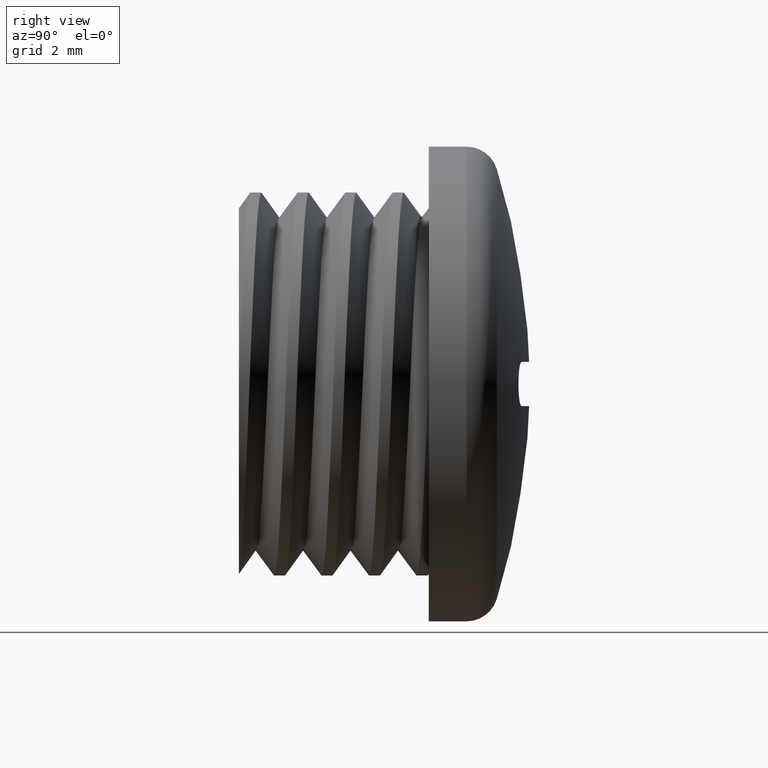
[diagram: clean part render]
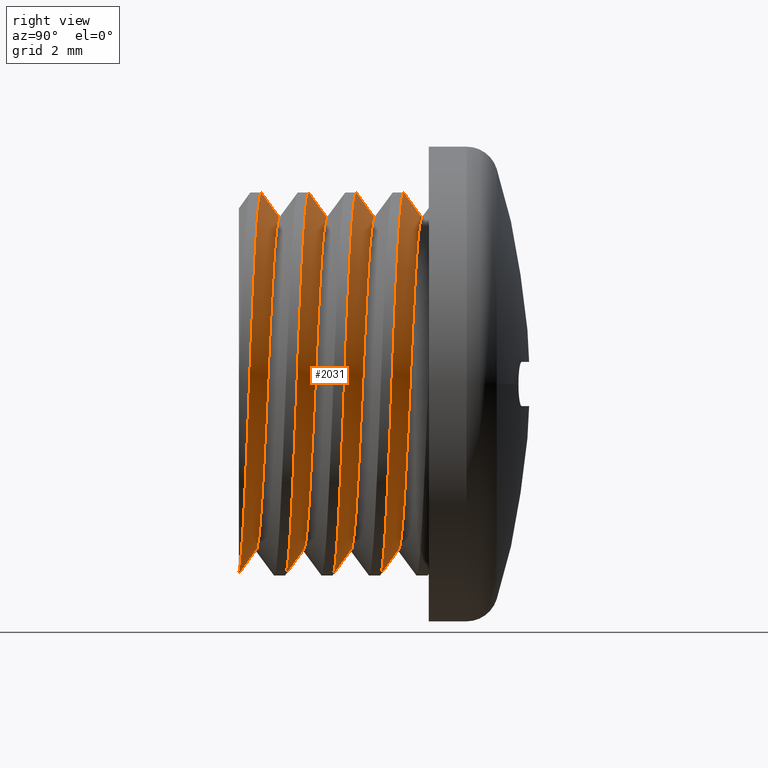
[diagram: same view with one face highlighted and labeled with its STEP entity id]
A machine part, right view. The second image highlights one B-rep face of the part: STEP entity #2031.
In plain terms, the highlighted face is a freeform B-spline surface patch.
Its self-contained STEP definition (entity closure, byte-faithful):
#1 = CARTESIAN_POINT ( 'NONE',  ( 2.505992052357227400, 2.706376109346959600, 6.050000000000001600 ) ) ;
#2 = CARTESIAN_POINT ( 'NONE',  ( -1.111366970226222900E-015, 5.800126109346960500, 6.049999999999999800 ) ) ;
#3 = CARTESIAN_POINT ( 'NONE',  ( 4.277996026178611200, 5.612626109346960500, 4.277996026178613000 ) ) ;
#4 = CARTESIAN_POINT ( 'NONE',  ( -6.049999999999999800, 4.675126109346960500, -7.409113134841486500E-016 ) ) ;
#5 = CARTESIAN_POINT ( 'NONE',  ( 4.277996026178612100, 5.237626109346959600, -4.277996026178612100 ) ) ;
#6 = CARTESIAN_POINT ( 'NONE',  ( -2.505992052357225200, 0.4563761093469599900, -6.050000000000001600 ) ) ;
#7 = CARTESIAN_POINT ( 'NONE',  ( 2.505992052357227400, 1.206376109346959800, 6.050000000000001600 ) ) ;
#8 = CARTESIAN_POINT ( 'NONE',  ( -6.049999999999999800, 1.675126109346960700, -7.409113134841486500E-016 ) ) ;
#9 = CARTESIAN_POINT ( 'NONE',  ( -2.505992052357228300, 2.893876109346960000, 6.050000000000001600 ) ) ;
#10 = CARTESIAN_POINT ( 'NONE',  ( -1.111366970226222900E-015, 1.300126109346959800, 6.049999999999999800 ) ) ;
#11 = CARTESIAN_POINT ( 'NONE',  ( 2.505992052357227400, 3.643876109346960000, -6.050000000000001600 ) ) ;
#12 = CARTESIAN_POINT ( 'NONE',  ( 4.277996026178612100, 3.737626109346960500, -4.277996026178612100 ) ) ;
#13 = CARTESIAN_POINT ( 'NONE',  ( 4.277996026178611200, 1.112626109346959600, 4.277996026178613000 ) ) ;
#14 = CARTESIAN_POINT ( 'NONE',  ( 3.704556567420743300E-016, 3.550126109346960000, -6.049999999999999800 ) ) ;
#15 = CARTESIAN_POINT ( 'NONE',  ( 6.050000000000001600, 1.018876109346960000, 2.505992052357228800 ) ) ;
#16 = CARTESIAN_POINT ( 'NONE',  ( -4.277996026178613000, 1.487626109346960000, 4.277996026178612100 ) ) ;
#17 = CARTESIAN_POINT ( 'NONE',  ( -2.505992052357225200, 1.956376109346960000, -6.050000000000001600 ) ) ;
#18 = CARTESIAN_POINT ( 'NONE',  ( -2.505992052357225200, 3.456376109346960000, -6.050000000000001600 ) ) ;
#19 = CARTESIAN_POINT ( 'NONE',  ( 6.049999999999999800, 3.925126109346960500, 1.481822626968297300E-015 ) ) ;
#20 = CARTESIAN_POINT ( 'NONE',  ( -4.277996026178612100, 0.3626261093469597700, -4.277996026178612100 ) ) ;
#21 = CARTESIAN_POINT ( 'NONE',  ( 2.505992052357227400, 0.6438761093469598200, -6.050000000000001600 ) ) ;
#22 = CARTESIAN_POINT ( 'NONE',  ( -1.111366970226222900E-015, 2.800126109346960900, 6.049999999999999800 ) ) ;
#23 = CARTESIAN_POINT ( 'NONE',  ( -6.050000000000001600, 3.081376109346960900, 2.505992052357223900 ) ) ;
#24 = CARTESIAN_POINT ( 'NONE',  ( 4.277996026178611200, 4.112626109346959600, 4.277996026178613000 ) ) ;
#25 = CARTESIAN_POINT ( 'NONE',  ( -6.049999999999999800, 0.1751261093469598200, -7.409113134841486500E-016 ) ) ;
#26 = CARTESIAN_POINT ( 'NONE',  ( -6.050000000000001600, 1.768876109346959600, -2.505992052357227400 ) ) ;
#27 = CARTESIAN_POINT ( 'NONE',  ( 4.277996026178612100, 2.237626109346959600, -4.277996026178612100 ) ) ;
#28 = CARTESIAN_POINT ( 'NONE',  ( 4.277996026178611200, 2.612626109346960000, 4.277996026178613000 ) ) ;
#29 = CARTESIAN_POINT ( 'NONE',  ( 2.505992052357227400, 4.206376109346959600, 6.050000000000001600 ) ) ;
#30 = CARTESIAN_POINT ( 'NONE',  ( -1.111366970226222900E-015, 4.300126109346959600, 6.049999999999999800 ) ) ;
#31 = CARTESIAN_POINT ( 'NONE',  ( 3.704556567420743300E-016, 5.050126109346959600, -6.049999999999999800 ) ) ;
#32 = CARTESIAN_POINT ( 'NONE',  ( 6.050000000000001600, 5.331376109346959600, -2.505992052357227000 ) ) ;
#33 = CARTESIAN_POINT ( 'NONE',  ( 6.049999999999999800, 5.425126109346959600, 1.481822626968297300E-015 ) ) ;
#34 = CARTESIAN_POINT ( 'NONE',  ( 2.505992052357227400, 5.143876109346959600, -6.050000000000001600 ) ) ;
#35 = CARTESIAN_POINT ( 'NONE',  ( 6.050000000000001600, 5.518876109346959600, 2.505992052357228800 ) ) ;
#36 = CARTESIAN_POINT ( 'NONE',  ( -2.505992052357228300, 1.393876109346959800, 6.050000000000001600 ) ) ;
#37 = CARTESIAN_POINT ( 'NONE',  ( 6.050000000000001600, 3.831376109346960500, -2.505992052357227000 ) ) ;
#38 = CARTESIAN_POINT ( 'NONE',  ( -4.277996026178613000, 4.487626109346961400, 4.277996026178612100 ) ) ;
#39 = CARTESIAN_POINT ( 'NONE',  ( -6.050000000000001600, 4.768876109346960500, -2.505992052357227400 ) ) ;
#40 = CARTESIAN_POINT ( 'NONE',  ( -2.505992052357228300, -0.1061238906530402000, 6.050000000000001600 ) ) ;
#41 = CARTESIAN_POINT ( 'NONE',  ( 6.050000000000001600, 2.331376109346960000, -2.505992052357227000 ) ) ;
#42 = CARTESIAN_POINT ( 'NONE',  ( 3.704556567420743300E-016, 2.050126109346960000, -6.049999999999999800 ) ) ;
#43 = CARTESIAN_POINT ( 'NONE',  ( -6.050000000000001600, 0.08137610934695985200, 2.505992052357223900 ) ) ;
#44 = CARTESIAN_POINT ( 'NONE',  ( 2.505992052357227400, 2.143876109346961400, -6.050000000000001600 ) ) ;
#45 = CARTESIAN_POINT ( 'NONE',  ( 6.050000000000001600, 2.518876109346960500, 2.505992052357228800 ) ) ;
#46 = CARTESIAN_POINT ( 'NONE',  ( 6.050000000000001600, 0.8313761093469601600, -2.505992052357227000 ) ) ;
#47 = CARTESIAN_POINT ( 'NONE',  ( -6.050000000000001600, 3.268876109346959600, -2.505992052357227400 ) ) ;
#48 = CARTESIAN_POINT ( 'NONE',  ( 3.704556567420743300E-016, 0.5501261093469599400, -6.049999999999999800 ) ) ;
#49 = CARTESIAN_POINT ( 'NONE',  ( -4.277996026178613000, 2.987626109346960000, 4.277996026178612100 ) ) ;
#50 = CARTESIAN_POINT ( 'NONE',  ( -2.505992052357228300, 4.393876109346959600, 6.050000000000001600 ) ) ;
#51 = CARTESIAN_POINT ( 'NONE',  ( -6.050000000000001600, 4.581376109346959600, 2.505992052357223900 ) ) ;
#52 = CARTESIAN_POINT ( 'NONE',  ( -4.277996026178612100, 4.862626109346960500, -4.277996026178612100 ) ) ;
#53 = CARTESIAN_POINT ( 'NONE',  ( 2.505992052357227400, 5.706376109346959600, 6.050000000000001600 ) ) ;
#54 = CARTESIAN_POINT ( 'NONE',  ( -4.277996026178613000, -0.01237389065304012700, 4.277996026178612100 ) ) ;
#55 = CARTESIAN_POINT ( 'NONE',  ( -6.050000000000001600, 1.581376109346960000, 2.505992052357223900 ) ) ;
#56 = CARTESIAN_POINT ( 'NONE',  ( 6.049999999999999800, 2.425126109346960000, 1.481822626968297300E-015 ) ) ;
#57 = CARTESIAN_POINT ( 'NONE',  ( 6.050000000000001600, 4.018876109346959600, 2.505992052357228800 ) ) ;
#58 = CARTESIAN_POINT ( 'NONE',  ( -2.505992052357225200, 4.956376109346959600, -6.050000000000001600 ) ) ;
#59 = CARTESIAN_POINT ( 'NONE',  ( 4.277996026178612100, 0.7376261093469601600, -4.277996026178612100 ) ) ;
#60 = CARTESIAN_POINT ( 'NONE',  ( 6.049999999999999800, 0.9251261093469598200, 1.481822626968297300E-015 ) ) ;
#61 = CARTESIAN_POINT ( 'NONE',  ( -6.049999999999999800, 3.175126109346959600, -7.409113134841486500E-016 ) ) ;
#62 = CARTESIAN_POINT ( 'NONE',  ( -4.277996026178612100, 3.362626109346960000, -4.277996026178612100 ) ) ;
#63 = CARTESIAN_POINT ( 'NONE',  ( -6.050000000000001600, 0.2688761093469597700, -2.505992052357227400 ) ) ;
#64 = CARTESIAN_POINT ( 'NONE',  ( -4.277996026178612100, 1.862626109346959800, -4.277996026178612100 ) ) ;
#68 = CARTESIAN_POINT ( 'NONE',  ( 4.277996026178612100, 6.737626109346960500, -4.277996026178612100 ) ) ;
#75 = CARTESIAN_POINT ( 'NONE',  ( -6.050000000000001600, 6.268876109346961400, -2.505992052357227400 ) ) ;
#82 = CARTESIAN_POINT ( 'NONE',  ( -6.049999999999999800, 6.175126109346959600, -7.409113134841486500E-016 ) ) ;
#90 = CARTESIAN_POINT ( 'NONE',  ( -4.277996026178612100, 6.362626109346959600, -4.277996026178612100 ) ) ;
#91 = CARTESIAN_POINT ( 'NONE',  ( 3.704556567420743300E-016, 6.550126109346962300, -6.049999999999999800 ) ) ;
#94 = CARTESIAN_POINT ( 'NONE',  ( -6.050000000000001600, 6.081376109346959600, 2.505992052357223900 ) ) ;
#98 = CARTESIAN_POINT ( 'NONE',  ( -2.505992052357225200, 6.456376109346959600, -6.050000000000001600 ) ) ;
#99 = CARTESIAN_POINT ( 'NONE',  ( -4.277996026178613000, 5.987626109346959600, 4.277996026178612100 ) ) ;
#100 = CARTESIAN_POINT ( 'NONE',  ( 6.049999999999999800, 6.925126109346959600, 1.481822626968297300E-015 ) ) ;
#102 = CARTESIAN_POINT ( 'NONE',  ( 2.505992052357227400, 6.643876109346959600, -6.050000000000001600 ) ) ;
#116 = CARTESIAN_POINT ( 'NONE',  ( 6.050000000000001600, 6.831376109346960500, -2.505992052357227000 ) ) ;
#117 = CARTESIAN_POINT ( 'NONE',  ( -2.505992052357228300, 5.893876109346960500, 6.050000000000001600 ) ) ;
#789 = CARTESIAN_POINT ( 'NONE',  ( 0.4767332268734920100, 6.590691688707115900, -6.027460733374892900 ) ) ;
#793 = CARTESIAN_POINT ( 'NONE',  ( 1.046562144374508300, 6.590691688707116700, -5.958792468106455700 ) ) ;
#801 = CARTESIAN_POINT ( 'NONE',  ( -5.418655082583039300, 6.590691688707116700, -1.258696964857538800 ) ) ;
#802 = CARTESIAN_POINT ( 'NONE',  ( -5.261892450653936000, 6.590691688707110500, 1.272915754200655900 ) ) ;
#804 = CARTESIAN_POINT ( 'NONE',  ( -3.897803387318181200, 0.5900000000000148500, -4.240062443806348100 ) ) ;
#805 = CARTESIAN_POINT ( 'NONE',  ( -1.753212765986236200, 6.590691688707115900, -5.637592657702938000 ) ) ;
#806 = CARTESIAN_POINT ( 'NONE',  ( -3.881901349614701200, 6.590691688707117600, -4.254933638930080700 ) ) ;
#807 = CARTESIAN_POINT ( 'NONE',  ( -0.9315806894199528700, 6.590691688707115000, -5.878191781287800800 ) ) ;
#808 = CARTESIAN_POINT ( 'NONE',  ( -3.244317848646373700, 6.590691688707117600, -4.816245778005123800 ) ) ;
#809 = CARTESIAN_POINT ( 'NONE',  ( -5.294758413213608100, 6.590691688707116700, -1.813559088695089400 ) ) ;
#810 = CARTESIAN_POINT ( 'NONE',  ( -2.524323389836862200, 6.590691688707117600, -5.283636220357985600 ) ) ;
#811 = CARTESIAN_POINT ( 'NONE',  ( -4.147533417366705800, 6.590691688707116700, 3.242958517323983900 ) ) ;
#813 = CARTESIAN_POINT ( 'NONE',  ( -4.138008830249748200, 0.5900000000000016300, 3.255103118801742300 ) ) ;
#814 = CARTESIAN_POINT ( 'NONE',  ( -4.831701580854220500, 6.590691688707118500, 2.334076269947546600 ) ) ;
#817 = CARTESIAN_POINT ( 'NONE',  ( -0.08908530659348369600, 6.590691688707113200, -6.016964204237069700 ) ) ;
#818 = CARTESIAN_POINT ( 'NONE',  ( -4.880378072715417100, 6.590691688707112300, -2.874946076253846800 ) ) ;
#819 = CARTESIAN_POINT ( 'NONE',  ( -5.257374285143514600, 0.5899999999999948600, 1.290710653147852300 ) ) ;
#821 = CARTESIAN_POINT ( 'NONE',  ( -4.528526544215804300, 6.590691688707117600, 2.812715320824375800 ) ) ;
#823 = CARTESIAN_POINT ( 'NONE',  ( -5.498900937243330000, 0.5900000000000023000, -0.3932831303897143000 ) ) ;
#824 = CARTESIAN_POINT ( 'NONE',  ( -5.003208019672817000, 6.590691688707117600, -2.619966405177630400 ) ) ;
#825 = CARTESIAN_POINT ( 'NONE',  ( -5.462378101001049500, 0.5900000000000024100, -0.9592472982626215600 ) ) ;
#827 = CARTESIAN_POINT ( 'NONE',  ( -3.466085316116987800, 6.590691688707116700, -4.639124568342858800 ) ) ;
#830 = CARTESIAN_POINT ( 'NONE',  ( -5.459198598145863300, 6.590691688707122100, -0.9783859338851537100 ) ) ;
#831 = CARTESIAN_POINT ( 'NONE',  ( -4.596744028863471800, 6.590691688707113200, -3.365260366505920000 ) ) ;
#832 = CARTESIAN_POINT ( 'NONE',  ( -4.434737786691715500, 6.590691688707117600, -3.602057687231706900 ) ) ;
#833 = CARTESIAN_POINT ( 'NONE',  ( -4.076169192242400800, 6.590691688707116700, -4.048100833600527100 ) ) ;
#834 = CARTESIAN_POINT ( 'NONE',  ( -5.497680573991218000, 6.590691688707121200, -0.4120314599989919300 ) ) ;
#835 = CARTESIAN_POINT ( 'NONE',  ( -5.495563773654545500, 6.590691688707106100, -0.1233751083295873800 ) ) ;
#836 = CARTESIAN_POINT ( 'NONE',  ( -2.015573616485173400, 6.590691688707115900, -5.532155859686685800 ) ) ;
#837 = CARTESIAN_POINT ( 'NONE',  ( -5.210380785036420500, 6.590691688707116700, -2.090096633453142800 ) ) ;
#838 = CARTESIAN_POINT ( 'NONE',  ( -4.824093481931830900, 0.5900000000000001900, 2.349304993163085600 ) ) ;
#839 = CARTESIAN_POINT ( 'NONE',  ( -5.165261145401560200, 0.5900000000000003000, 1.561497146290873300 ) ) ;
#840 = CARTESIAN_POINT ( 'NONE',  ( -5.396809796046601300, 0.5899999999999950800, 0.7420480307684493800 ) ) ;
#841 = CARTESIAN_POINT ( 'NONE',  ( -5.495911240440607400, 0.5899999999999993000, -0.1057434573459113000 ) ) ;
#842 = CARTESIAN_POINT ( 'NONE',  ( -5.170691631850489000, 6.590691688707115900, 1.544117606924583700 ) ) ;
#843 = CARTESIAN_POINT ( 'NONE',  ( -1.212386830438458400, 6.590691688707117600, -5.810508361329772800 ) ) ;
#844 = CARTESIAN_POINT ( 'NONE',  ( -5.300439950719841400, 0.5900000000000003000, -1.796620061944596400 ) ) ;
#846 = CARTESIAN_POINT ( 'NONE',  ( -5.422816559957263700, 0.5900000000000001900, -1.239928796507371100 ) ) ;
#847 = CARTESIAN_POINT ( 'NONE',  ( -5.217127081620002800, 0.5899999999999995200, -2.072609452356351000 ) ) ;
#849 = CARTESIAN_POINT ( 'NONE',  ( -5.012444595960044300, 0.5899999999999995200, -2.601565993294770800 ) ) ;
#850 = CARTESIAN_POINT ( 'NONE',  ( -4.890659777242102100, 0.5899999999999998600, -2.856959270208727200 ) ) ;
#851 = CARTESIAN_POINT ( 'NONE',  ( -2.772148633460569800, 6.590691688707117600, -5.139550678664928500 ) ) ;
#852 = CARTESIAN_POINT ( 'NONE',  ( -4.519807008836641800, 0.5900000000000016300, 2.826445878513559300 ) ) ;
#853 = CARTESIAN_POINT ( 'NONE',  ( -5.444733412008575100, 0.5899999999999991900, 0.4628059297968018500 ) ) ;
#854 = CARTESIAN_POINT ( 'NONE',  ( -4.608072159565493200, 0.5899999999999997500, -3.349514707442315500 ) ) ;
#855 = CARTESIAN_POINT ( 'NONE',  ( -5.399431474689390800, 6.590691688707109600, 0.7238366190391822800 ) ) ;
#856 = CARTESIAN_POINT ( 'NONE',  ( -4.445712708352043100, 0.5899999999999990800, -3.588293318611675400 ) ) ;
#857 = CARTESIAN_POINT ( 'NONE',  ( -4.090817180397282400, 0.5899999999999989700, -4.032896164381630100 ) ) ;
#859 = CARTESIAN_POINT ( 'NONE',  ( -5.446351150528043300, 6.590691688707105200, 0.4446181503025695700 ) ) ;
#863 = CARTESIAN_POINT ( 'NONE',  ( -1.774006093517159300, 0.5899999999999997500, -5.630914751144775500 ) ) ;
#864 = CARTESIAN_POINT ( 'NONE',  ( -2.544499409511809000, 0.5900000000000004100, -5.273559891919910000 ) ) ;
#865 = CARTESIAN_POINT ( 'NONE',  ( -0.3940142496733479700, 0.5899999999999658900, -5.968746079691809000 ) ) ;
#866 = CARTESIAN_POINT ( 'NONE',  ( 0.4569536285924925600, 0.5900000000000011900, -6.008629707231945900 ) ) ;
#869 = CARTESIAN_POINT ( 'NONE',  ( -2.037011068725241600, 0.5900000000000004100, -5.523905644850780800 ) ) ;
#870 = CARTESIAN_POINT ( 'NONE',  ( -2.788981617492968900, 0.5899999999999998600, -5.130220974818203500 ) ) ;
#871 = CARTESIAN_POINT ( 'NONE',  ( -0.1122020578807460500, 0.5900000000000013000, -5.995358746917874600 ) ) ;
#879 = CARTESIAN_POINT ( 'NONE',  ( -3.258935390471613400, 0.5899999999999998600, -4.806256429916283300 ) ) ;
#880 = CARTESIAN_POINT ( 'NONE',  ( -0.9519802428314603200, 0.5899999999999657700, -5.874648377076338700 ) ) ;
#891 = CARTESIAN_POINT ( 'NONE',  ( 0.5272554247480139000, 6.569850910957386600, -6.049999999999819500 ) ) ;
#893 = CARTESIAN_POINT ( 'NONE',  ( -3.482852940862207100, 0.5900000000000148500, -4.626272760495684400 ) ) ;
#896 = CARTESIAN_POINT ( 'NONE',  ( -4.147533417366705800, 6.590691688707116700, 3.242958517323983900 ) ) ;
#897 = CARTESIAN_POINT ( 'NONE',  ( 1.029316842820993300, 0.5899999999999998600, -5.961795605107996100 ) ) ;
#902 = CARTESIAN_POINT ( 'NONE',  ( -1.228765912102359300, 0.5899999999999997500, -5.807215561931736900 ) ) ;
#903 = CARTESIAN_POINT ( 'NONE',  ( 0.7445611787788908300, 0.5899999999999995200, -5.995285089515286700 ) ) ;
#905 = CARTESIAN_POINT ( 'NONE',  ( 8.146817116469705000E-013, 6.550126109346993400, -6.050000000000000700 ) ) ;
#906 = CARTESIAN_POINT ( 'NONE',  ( 1.046562144374508300, 6.590691688707116700, -5.958792468106454800 ) ) ;
#911 = CARTESIAN_POINT ( 'NONE',  ( -2.180778877489655300, 1.031250000000000000, -5.264865942572300600 ) ) ;
#912 = CARTESIAN_POINT ( 'NONE',  ( 3.223800612255540000E-016, 4.125000000000000000, -5.264865942572300600 ) ) ;
#913 = CARTESIAN_POINT ( 'NONE',  ( -2.180778877489658800, 6.468750000000001800, 5.264865942572300600 ) ) ;
#914 = CARTESIAN_POINT ( 'NONE',  ( -3.722822410030977500, 0.9375000000000000000, -3.722822410030977900 ) ) ;
#915 = CARTESIAN_POINT ( 'NONE',  ( -5.264865942572300600, 5.343750000000000000, -2.180778877489656200 ) ) ;
#916 = CARTESIAN_POINT ( 'NONE',  ( 5.264865942572300600, 3.000000000000000000, 1.289520244902216000E-015 ) ) ;
#917 = CARTESIAN_POINT ( 'NONE',  ( -3.722822410030977500, 3.937500000000000000, -3.722822410030977900 ) ) ;
#918 = CARTESIAN_POINT ( 'NONE',  ( -5.264865942572300600, 3.843750000000000000, -2.180778877489656200 ) ) ;
#919 = CARTESIAN_POINT ( 'NONE',  ( -2.180778877489658800, 3.468750000000000000, 5.264865942572300600 ) ) ;
#920 = CARTESIAN_POINT ( 'NONE',  ( -5.264865942572301400, 2.156250000000000400, 2.180778877489654400 ) ) ;
#921 = CARTESIAN_POINT ( 'NONE',  ( -2.180778877489658800, 1.968750000000000000, 5.264865942572300600 ) ) ;
#922 = CARTESIAN_POINT ( 'NONE',  ( 3.722822410030977900, 5.812500000000000000, -3.722822410030977500 ) ) ;
#923 = CARTESIAN_POINT ( 'NONE',  ( 5.264865942572300600, 4.593750000000000000, 2.180778877489658800 ) ) ;
#924 = CARTESIAN_POINT ( 'NONE',  ( 5.264865942572300600, 2.906250000000000000, -2.180778877489655700 ) ) ;
#925 = CARTESIAN_POINT ( 'NONE',  ( 2.180778877489657000, 1.781250000000000000, 5.264865942572300600 ) ) ;
#926 = CARTESIAN_POINT ( 'NONE',  ( -3.722822410030978400, 6.562500000000000000, 3.722822410030977500 ) ) ;
#927 = CARTESIAN_POINT ( 'NONE',  ( 5.264865942572300600, 1.593750000000000200, 2.180778877489658800 ) ) ;
#928 = CARTESIAN_POINT ( 'NONE',  ( 3.722822410030977500, 4.687500000000000000, 3.722822410030978400 ) ) ;
#929 = CARTESIAN_POINT ( 'NONE',  ( -9.671401836766619100E-016, 6.375000000000000900, 5.264865942572300600 ) ) ;
#930 = CARTESIAN_POINT ( 'NONE',  ( 5.264865942572300600, 5.906250000000000000, -2.180778877489655700 ) ) ;
#931 = CARTESIAN_POINT ( 'NONE',  ( -2.180778877489658800, 4.968749999999999100, 5.264865942572300600 ) ) ;
#932 = CARTESIAN_POINT ( 'NONE',  ( 3.722822410030977900, 4.312500000000000000, -3.722822410030977500 ) ) ;
#933 = CARTESIAN_POINT ( 'NONE',  ( -2.180778877489655300, 4.031250000000000000, -5.264865942572300600 ) ) ;
#934 = CARTESIAN_POINT ( 'NONE',  ( -5.264865942572300600, 2.250000000000001300, -6.447601224511080000E-016 ) ) ;
#935 = CARTESIAN_POINT ( 'NONE',  ( 4.277996026178611200, -0.3873738906530401800, 4.277996026178613000 ) ) ;
#936 = CARTESIAN_POINT ( 'NONE',  ( -5.264865942572300600, 3.750000000000000000, -6.447601224511080000E-016 ) ) ;
#937 = CARTESIAN_POINT ( 'NONE',  ( -5.264865942572301400, 3.656250000000001300, 2.180778877489654400 ) ) ;
#938 = CARTESIAN_POINT ( 'NONE',  ( 2.180778877489657000, 3.281250000000000000, 5.264865942572300600 ) ) ;
#939 = CARTESIAN_POINT ( 'NONE',  ( 2.180778877489656200, 5.718750000000000000, -5.264865942572300600 ) ) ;
#940 = CARTESIAN_POINT ( 'NONE',  ( -3.949806817434192500, 6.576299732462145700, 3.495838002627763300 ) ) ;
#941 = CARTESIAN_POINT ( 'NONE',  ( -2.180778877489655300, 5.531250000000000000, -5.264865942572300600 ) ) ;
#942 = CARTESIAN_POINT ( 'NONE',  ( -3.722822410030978400, 3.562500000000000000, 3.722822410030977500 ) ) ;
#943 = CARTESIAN_POINT ( 'NONE',  ( 2.180778877489657000, 6.281250000000000000, 5.264865942572300600 ) ) ;
#944 = CARTESIAN_POINT ( 'NONE',  ( 5.264865942572300600, 6.000000000000000000, 1.289520244902216000E-015 ) ) ;
#945 = CARTESIAN_POINT ( 'NONE',  ( 5.264865942572300600, 4.406250000000000000, -2.180778877489655700 ) ) ;
#946 = CARTESIAN_POINT ( 'NONE',  ( 2.180778877489656200, 2.718750000000001300, -5.264865942572300600 ) ) ;
#947 = CARTESIAN_POINT ( 'NONE',  ( 3.223800612255540000E-016, 2.625000000000000000, -5.264865942572300600 ) ) ;
#948 = CARTESIAN_POINT ( 'NONE',  ( 3.223800612255540000E-016, 5.625000000000000000, -5.264865942572300600 ) ) ;
#949 = CARTESIAN_POINT ( 'NONE',  ( 5.264865942572300600, 6.093750000000000000, 2.180778877489658800 ) ) ;
#951 = CARTESIAN_POINT ( 'NONE',  ( -5.264865942572301400, 5.156250000000000000, 2.180778877489654400 ) ) ;
#952 = CARTESIAN_POINT ( 'NONE',  ( -3.722822410030977500, 5.437500000000002700, -3.722822410030977900 ) ) ;
#953 = CARTESIAN_POINT ( 'NONE',  ( 2.180778877489656200, 4.218750000000000000, -5.264865942572300600 ) ) ;
#954 = CARTESIAN_POINT ( 'NONE',  ( -5.264865942572300600, 2.343750000000000400, -2.180778877489656200 ) ) ;
#955 = CARTESIAN_POINT ( 'NONE',  ( -9.671401836766619100E-016, 1.875000000000000000, 5.264865942572300600 ) ) ;
#956 = CARTESIAN_POINT ( 'NONE',  ( 5.264865942572300600, 1.500000000000000000, 1.289520244902216000E-015 ) ) ;
#957 = CARTESIAN_POINT ( 'NONE',  ( -3.722822410030978400, 2.062500000000000000, 3.722822410030977500 ) ) ;
#958 = CARTESIAN_POINT ( 'NONE',  ( 5.264865942572300600, 1.406250000000000000, -2.180778877489655700 ) ) ;
#959 = CARTESIAN_POINT ( 'NONE',  ( 5.264865942572300600, 4.500000000000002700, 1.289520244902216000E-015 ) ) ;
#960 = CARTESIAN_POINT ( 'NONE',  ( 3.722822410030977500, 3.187500000000000400, 3.722822410030978400 ) ) ;
#961 = CARTESIAN_POINT ( 'NONE',  ( 3.722822410030977900, 2.812500000000000000, -3.722822410030977500 ) ) ;
#962 = CARTESIAN_POINT ( 'NONE',  ( -9.671401836766619100E-016, 3.375000000000000000, 5.264865942572300600 ) ) ;
#963 = CARTESIAN_POINT ( 'NONE',  ( -2.180778877489655300, 2.531250000000000400, -5.264865942572300600 ) ) ;
#964 = CARTESIAN_POINT ( 'NONE',  ( 3.722822410030977900, 1.312500000000000000, -3.722822410030977500 ) ) ;
#965 = CARTESIAN_POINT ( 'NONE',  ( -3.722822410030977500, 2.437500000000000000, -3.722822410030977900 ) ) ;
#966 = CARTESIAN_POINT ( 'NONE',  ( 3.722822410030977500, 1.687500000000000000, 3.722822410030978400 ) ) ;
#967 = CARTESIAN_POINT ( 'NONE',  ( -5.264865942572300600, 5.250000000000000000, -6.447601224511080000E-016 ) ) ;
#968 = CARTESIAN_POINT ( 'NONE',  ( 3.722822410030977500, 6.187500000000000000, 3.722822410030978400 ) ) ;
#969 = CARTESIAN_POINT ( 'NONE',  ( -3.722822410030978400, 5.062500000000000000, 3.722822410030977500 ) ) ;
#970 = CARTESIAN_POINT ( 'NONE',  ( -9.671401836766619100E-016, 4.875000000000000000, 5.264865942572300600 ) ) ;
#971 = CARTESIAN_POINT ( 'NONE',  ( 2.180778877489656200, 1.218750000000000200, -5.264865942572300600 ) ) ;
#972 = CARTESIAN_POINT ( 'NONE',  ( 5.264865942572300600, 3.093750000000000000, 2.180778877489658800 ) ) ;
#973 = CARTESIAN_POINT ( 'NONE',  ( 3.223800612255540000E-016, 1.125000000000000700, -5.264865942572300600 ) ) ;
#974 = CARTESIAN_POINT ( 'NONE',  ( 2.180778877489657000, 4.781250000000000000, 5.264865942572300600 ) ) ;
#977 = CARTESIAN_POINT ( 'NONE',  ( -5.264865942572301400, 0.6716478242738305200, 1.822600211509212600 ) ) ;
#994 = CARTESIAN_POINT ( 'NONE',  ( -5.264865942572300600, 0.8437500000000000000, -2.180778877489656200 ) ) ;
#997 = CARTESIAN_POINT ( 'NONE',  ( -5.264865942572300600, 0.7500000000000000000, -6.447601224511080000E-016 ) ) ;
#1023 = CARTESIAN_POINT ( 'NONE',  ( -4.138008830249748200, 0.5900000000000016300, 3.255103118801742300 ) ) ;
#1047 = CARTESIAN_POINT ( 'NONE',  ( -1.111366970226222900E-015, 1.300126109346959800, 6.049999999999999800 ) ) ;
#1049 = CARTESIAN_POINT ( 'NONE',  ( -2.505992052357227000, 1.393876109346963200, 6.049999999999995400 ) ) ;
#1052 = CARTESIAN_POINT ( 'NONE',  ( -6.049999999999996300, 1.581376109346963400, 2.505992052357222100 ) ) ;
#1055 = CARTESIAN_POINT ( 'NONE',  ( -6.049999999999995400, 1.675126109346963800, -7.409113134841480600E-016 ) ) ;
#1056 = CARTESIAN_POINT ( 'NONE',  ( -6.049999999999996300, 1.768876109346962900, -2.505992052357225700 ) ) ;
#1057 = CARTESIAN_POINT ( 'NONE',  ( -4.277996026178609400, 1.862626109346962900, -4.277996026178609400 ) ) ;
#1066 = CARTESIAN_POINT ( 'NONE',  ( -4.277996026178610300, 1.487626109346963200, 4.277996026178609400 ) ) ;
#1068 = CARTESIAN_POINT ( 'NONE',  ( 8.023436623137807500E-013, 2.050126109346990200, -6.049999999999999800 ) ) ;
#1069 = CARTESIAN_POINT ( 'NONE',  ( -2.505992052356149600, 1.956376109347020200, -6.050000000001070100 ) ) ;
#1135 = CARTESIAN_POINT ( 'NONE',  ( -1.382972892286990700E-012, 4.300126109347012000, 6.050000000000000700 ) ) ;
#1141 = CARTESIAN_POINT ( 'NONE',  ( 6.049999999999994500, 3.831376109346964900, -2.505992052357223900 ) ) ;
#1144 = CARTESIAN_POINT ( 'NONE',  ( 4.277996026178606700, 3.737626109346965400, -4.277996026178606700 ) ) ;
#1150 = CARTESIAN_POINT ( 'NONE',  ( 6.049999999999993600, 3.925126109346965800, 1.481822626968295700E-015 ) ) ;
#1152 = CARTESIAN_POINT ( 'NONE',  ( 4.277996026178605900, 4.112626109346964000, 4.277996026178607600 ) ) ;
#1153 = CARTESIAN_POINT ( 'NONE',  ( -1.382972892286990700E-012, 4.300126109347012000, 6.050000000000000700 ) ) ;
#1161 = CARTESIAN_POINT ( 'NONE',  ( 3.704556567420743300E-016, 3.550126109346960000, -6.049999999999999800 ) ) ;
#1162 = CARTESIAN_POINT ( 'NONE',  ( 2.505992052357224300, 3.643876109346964900, -6.049999999999994500 ) ) ;
#1163 = CARTESIAN_POINT ( 'NONE',  ( 6.049999999999993600, 4.018876109346964000, 2.505992052357226100 ) ) ;
#1164 = CARTESIAN_POINT ( 'NONE',  ( 2.505992052355905400, 4.206376109347034200, 6.050000000001313400 ) ) ;
#1177 = CARTESIAN_POINT ( 'NONE',  ( 2.505992052357227400, -0.2936238906530401200, 6.050000000000001600 ) ) ;
#1182 = CARTESIAN_POINT ( 'NONE',  ( 2.505992052357227000, 5.706376109346960500, 6.050000000000001600 ) ) ;
#1183 = CARTESIAN_POINT ( 'NONE',  ( -6.049999999999995400, 4.768876109346964000, -2.505992052357224300 ) ) ;
#1184 = CARTESIAN_POINT ( 'NONE',  ( -6.049999999999995400, 4.581376109346964000, 2.505992052357221700 ) ) ;
#1185 = CARTESIAN_POINT ( 'NONE',  ( -8.632929976661989300E-013, 5.050126109346927600, -6.049999999999999800 ) ) ;
#1187 = CARTESIAN_POINT ( 'NONE',  ( 4.277996026178607600, 0.7376261093469644900, -4.277996026178607600 ) ) ;
#1188 = CARTESIAN_POINT ( 'NONE',  ( -1.111366970226222900E-015, 1.300126109346959800, 6.049999999999999800 ) ) ;
#1189 = CARTESIAN_POINT ( 'NONE',  ( -8.632929976661989300E-013, 5.050126109346927600, -6.049999999999999800 ) ) ;
#1190 = CARTESIAN_POINT ( 'NONE',  ( -6.049999999999993600, 4.675126109346964000, -7.409113134841479600E-016 ) ) ;
#1191 = CARTESIAN_POINT ( 'NONE',  ( -4.277996026178609400, 4.487626109346965800, 4.277996026178608500 ) ) ;
#1195 = CARTESIAN_POINT ( 'NONE',  ( 4.277996026178606700, 1.112626109346964000, 4.277996026178608500 ) ) ;
#1196 = CARTESIAN_POINT ( 'NONE',  ( 2.505992052356123000, 5.143876109346901000, -6.050000000001104700 ) ) ;
#1197 = CARTESIAN_POINT ( 'NONE',  ( 6.050000000000001600, 5.518876109346960500, 2.505992052357228800 ) ) ;
#1199 = CARTESIAN_POINT ( 'NONE',  ( -2.505992052358325700, 4.956376109346904500, -6.049999999998891400 ) ) ;
#1202 = CARTESIAN_POINT ( 'NONE',  ( 6.050000000000001600, 5.331376109346959600, -2.505992052357226100 ) ) ;
#1207 = CARTESIAN_POINT ( 'NONE',  ( 1.029316842820993300, 0.5899999999999998600, -5.961795605107996100 ) ) ;
#1208 = CARTESIAN_POINT ( 'NONE',  ( 6.049999999999994500, 0.8313761093469644900, -2.505992052357224300 ) ) ;
#1209 = CARTESIAN_POINT ( 'NONE',  ( 6.049999999999993600, 0.9251261093469641500, 1.481822626968295900E-015 ) ) ;
#1210 = CARTESIAN_POINT ( 'NONE',  ( 4.277996026178611200, 5.612626109346961400, 4.277996026178613000 ) ) ;
#1211 = CARTESIAN_POINT ( 'NONE',  ( 2.505992052357224300, 1.206376109346964000, 6.049999999999994500 ) ) ;
#1213 = CARTESIAN_POINT ( 'NONE',  ( -1.111366970226222900E-015, 5.800126109346960500, 6.049999999999999800 ) ) ;
#1216 = CARTESIAN_POINT ( 'NONE',  ( -2.505992052358545100, 4.393876109347035100, 6.049999999998677300 ) ) ;
#1217 = CARTESIAN_POINT ( 'NONE',  ( 2.920757799350861100, 0.6658197896970699000, -5.635234253006357700 ) ) ;
#1219 = CARTESIAN_POINT ( 'NONE',  ( -4.277996026178608500, 4.862626109346964900, -4.277996026178608500 ) ) ;
#1222 = CARTESIAN_POINT ( 'NONE',  ( 6.049999999999993600, 1.018876109346964300, 2.505992052357227000 ) ) ;
#1224 = CARTESIAN_POINT ( 'NONE',  ( 4.277996026178612100, 5.237626109346959600, -4.277996026178612100 ) ) ;
#1226 = CARTESIAN_POINT ( 'NONE',  ( 6.049999999999998900, 5.425126109346960500, 1.481822626968297100E-015 ) ) ;
#1232 = CARTESIAN_POINT ( 'NONE',  ( 6.049999999999995400, 2.331376109346964500, -2.505992052357224300 ) ) ;
#1244 = CARTESIAN_POINT ( 'NONE',  ( 4.277996026178607600, 2.237626109346964000, -4.277996026178607600 ) ) ;
#1247 = CARTESIAN_POINT ( 'NONE',  ( 6.049999999999994500, 2.518876109346964500, 2.505992052357227000 ) ) ;
#1249 = CARTESIAN_POINT ( 'NONE',  ( 8.023436623137807500E-013, 2.050126109346990200, -6.049999999999999800 ) ) ;
#1268 = CARTESIAN_POINT ( 'NONE',  ( 2.505992052358584100, 2.706376109346892500, 6.049999999998636500 ) ) ;
#1271 = CARTESIAN_POINT ( 'NONE',  ( 6.049999999999993600, 2.425126109346964500, 1.481822626968295900E-015 ) ) ;
#1281 = CARTESIAN_POINT ( 'NONE',  ( 4.277996026178606700, 2.612626109346964500, 4.277996026178608500 ) ) ;
#1282 = CARTESIAN_POINT ( 'NONE',  ( 1.479454553011943900E-012, 2.800126109346905900, 6.050000000000000700 ) ) ;
#1284 = CARTESIAN_POINT ( 'NONE',  ( 2.505992052358298100, 2.143876109347021800, -6.049999999998923400 ) ) ;
#1285 = CARTESIAN_POINT ( 'NONE',  ( -6.049999999999995400, 6.081376109346964000, 2.505992052357221700 ) ) ;
#1288 = CARTESIAN_POINT ( 'NONE',  ( 1.479454553011943900E-012, 2.800126109346905900, 6.050000000000000700 ) ) ;
#1290 = CARTESIAN_POINT ( 'NONE',  ( -2.505992052355865400, 2.893876109346893400, 6.050000000001351600 ) ) ;
#1301 = CARTESIAN_POINT ( 'NONE',  ( -2.505992052357226100, 5.893876109346964000, 6.049999999999994500 ) ) ;
#1302 = CARTESIAN_POINT ( 'NONE',  ( -4.277996026178608500, 5.987626109346964000, 4.277996026178607600 ) ) ;
#1305 = CARTESIAN_POINT ( 'NONE',  ( -4.277996026178607600, 2.987626109346965800, 4.277996026178606700 ) ) ;
#1307 = CARTESIAN_POINT ( 'NONE',  ( -6.049999999999995400, 6.268876109346964900, -2.505992052357224300 ) ) ;
#1308 = CARTESIAN_POINT ( 'NONE',  ( -4.277996026178607600, 6.362626109346963200, -4.277996026178607600 ) ) ;
#1311 = CARTESIAN_POINT ( 'NONE',  ( -1.111366970226222900E-015, 5.800126109346960500, 6.049999999999999800 ) ) ;
#1326 = CARTESIAN_POINT ( 'NONE',  ( -6.049999999999993600, 6.175126109346964000, -7.409113134841479600E-016 ) ) ;
#1329 = CARTESIAN_POINT ( 'NONE',  ( 8.146817116469705000E-013, 6.550126109346993400, -6.050000000000000700 ) ) ;
#1332 = CARTESIAN_POINT ( 'NONE',  ( -2.505992052356139900, 6.456376109347021800, -6.050000000001079000 ) ) ;
#1349 = CARTESIAN_POINT ( 'NONE',  ( -6.049999999999993600, 3.081376109346966700, 2.505992052357220800 ) ) ;
#1360 = CARTESIAN_POINT ( 'NONE',  ( -4.277996026178606700, 3.362626109346965800, -4.277996026178606700 ) ) ;
#1361 = CARTESIAN_POINT ( 'NONE',  ( -2.505992052357221700, 3.456376109346965800, -6.049999999999993600 ) ) ;
#1371 = CARTESIAN_POINT ( 'NONE',  ( -6.049999999999993600, 3.268876109346965400, -2.505992052357223900 ) ) ;
#1380 = CARTESIAN_POINT ( 'NONE',  ( -6.049999999999991800, 3.175126109346965400, -7.409113134841476700E-016 ) ) ;
#1384 = CARTESIAN_POINT ( 'NONE',  ( 3.704556567420743300E-016, 3.550126109346960000, -6.049999999999999800 ) ) ;
#1390 = CARTESIAN_POINT ( 'NONE',  ( -1.111366970226222900E-015, -0.1998738906530401800, 6.049999999999999800 ) ) ;
#1444 = CARTESIAN_POINT ( 'NONE',  ( 5.264865942572299700, -1.406250000000000000, 2.180778877489658800 ) ) ;
#1446 = CARTESIAN_POINT ( 'NONE',  ( -3.722822410030977500, -0.5625000000000003300, -3.722822410030977900 ) ) ;
#1451 = CARTESIAN_POINT ( 'NONE',  ( 3.223800612255540000E-016, -0.3750000000000000000, -5.264865942572300600 ) ) ;
#1454 = CARTESIAN_POINT ( 'NONE',  ( 3.722822410030977500, 0.1875000000000000000, 3.722822410030978400 ) ) ;
#1455 = CARTESIAN_POINT ( 'NONE',  ( 2.180778877489657000, 0.2812500000000000600, 5.264865942572299700 ) ) ;
#1456 = FACE_OUTER_BOUND ( 'NONE', #1660, .T. ) ;
#1458 = CARTESIAN_POINT ( 'NONE',  ( 3.722822410030977500, -1.312500000000000000, 3.722822410030978400 ) ) ;
#1459 = CARTESIAN_POINT ( 'NONE',  ( -9.671401836766619100E-016, 0.3750000000000000000, 5.264865942572300600 ) ) ;
#1460 = CARTESIAN_POINT ( 'NONE',  ( -2.180778877489658800, 0.4687499999999999400, 5.264865942572299700 ) ) ;
#1461 = CARTESIAN_POINT ( 'NONE',  ( -2.180778877489655300, -0.4687499999999999400, -5.264865942572299700 ) ) ;
#1463 = CARTESIAN_POINT ( 'NONE',  ( -3.722822410030978400, 0.5625000000000003300, 3.722822410030977500 ) ) ;
#1464 = CARTESIAN_POINT ( 'NONE',  ( -5.264865942572300600, 0.6562500000000004400, 2.180778877489654400 ) ) ;
#1467 = CARTESIAN_POINT ( 'NONE',  ( -2.180778877489658800, -1.031250000000000000, 5.264865942572299700 ) ) ;
#1468 = CARTESIAN_POINT ( 'NONE',  ( -5.264865942572299700, -0.6562500000000004400, -2.180778877489656200 ) ) ;
#1476 = CARTESIAN_POINT ( 'NONE',  ( -3.722822410030978400, -0.9375000000000000000, 3.722822410030977500 ) ) ;
#1478 = CARTESIAN_POINT ( 'NONE',  ( 2.180778877489657000, -1.218750000000000200, 5.264865942572299700 ) ) ;
#1479 = CARTESIAN_POINT ( 'NONE',  ( -9.671401836766619100E-016, -1.125000000000000700, 5.264865942572300600 ) ) ;
#1481 = CARTESIAN_POINT ( 'NONE',  ( 5.264865942572300600, -1.500000000000000000, 1.289520244902216000E-015 ) ) ;
#1482 = CARTESIAN_POINT ( 'NONE',  ( -5.264865942572300600, -0.7500000000000000000, -6.447601224511080000E-016 ) ) ;
#1485 = CARTESIAN_POINT ( 'NONE',  ( 2.180778877489656200, -0.2812500000000000600, -5.264865942572299700 ) ) ;
#1486 = CARTESIAN_POINT ( 'NONE',  ( 3.722822410030977900, -0.1875000000000000000, -3.722822410030977500 ) ) ;
#1487 = CARTESIAN_POINT ( 'NONE',  ( 5.264865942572299700, -0.09375000000000001400, -2.180778877489655700 ) ) ;
#1493 = CARTESIAN_POINT ( 'NONE',  ( -5.264865942572300600, -0.8437500000000000000, 2.180778877489654400 ) ) ;
#1496 = CARTESIAN_POINT ( 'NONE',  ( 5.264865942572300600, 0.0000000000000000000, 1.289520244902216000E-015 ) ) ;
#1497 = CARTESIAN_POINT ( 'NONE',  ( 5.264865942572299700, 0.09375000000000001400, 2.180778877489658800 ) ) ;
#1499 = CARTESIAN_POINT ( 'NONE',  ( -3.722822410030978400, 3.562500000000000000, 3.722822410030977500 ) ) ;
#1500 = CARTESIAN_POINT ( 'NONE',  ( 5.264865942572299700, 4.406250000000000000, -2.180778877489655700 ) ) ;
#1501 = CARTESIAN_POINT ( 'NONE',  ( 3.223800612255540000E-016, 1.125000000000000700, -5.264865942572300600 ) ) ;
#1502 = CARTESIAN_POINT ( 'NONE',  ( -9.671401836766619100E-016, 3.375000000000000000, 5.264865942572300600 ) ) ;
#1503 = CARTESIAN_POINT ( 'NONE',  ( -5.264865942572300600, 0.7500000000000000000, -6.447601224511080000E-016 ) ) ;
#1504 = CARTESIAN_POINT ( 'NONE',  ( -5.264865942572300600, 2.250000000000001300, -6.447601224511080000E-016 ) ) ;
#1505 = CARTESIAN_POINT ( 'NONE',  ( 3.223800612255540000E-016, 4.125000000000000000, -5.264865942572300600 ) ) ;
#1506 = CARTESIAN_POINT ( 'NONE',  ( 2.180778877489656200, 4.218750000000000000, -5.264865942572299700 ) ) ;
#1507 = CARTESIAN_POINT ( 'NONE',  ( 5.264865942572300600, 4.500000000000002700, 1.289520244902216000E-015 ) ) ;
#1508 = CARTESIAN_POINT ( 'NONE',  ( -2.180778877489655300, 5.531250000000000000, -5.264865942572299700 ) ) ;
#1509 = CARTESIAN_POINT ( 'NONE',  ( -5.264865942572300600, 3.656250000000001300, 2.180778877489654400 ) ) ;
#1510 = CARTESIAN_POINT ( 'NONE',  ( 2.180778877489657000, 1.781250000000000200, 5.264865942572299700 ) ) ;
#1511 = CARTESIAN_POINT ( 'NONE',  ( 2.180778877489657000, 4.781250000000000000, 5.264865942572299700 ) ) ;
#1512 = CARTESIAN_POINT ( 'NONE',  ( -2.180778877489658800, 3.468750000000000000, 5.264865942572299700 ) ) ;
#1513 = CARTESIAN_POINT ( 'NONE',  ( -5.264865942572299700, 0.8437500000000000000, -2.180778877489656200 ) ) ;
#1514 = CARTESIAN_POINT ( 'NONE',  ( -2.180778877489655300, 1.031250000000000000, -5.264865942572299700 ) ) ;
#1515 = CARTESIAN_POINT ( 'NONE',  ( 5.264865942572300600, 3.000000000000000000, 1.289520244902216000E-015 ) ) ;
#1516 = CARTESIAN_POINT ( 'NONE',  ( 2.180778877489656200, 5.718750000000000000, -5.264865942572299700 ) ) ;
#1517 = CARTESIAN_POINT ( 'NONE',  ( 2.180778877489656200, 1.218750000000000200, -5.264865942572299700 ) ) ;
#1518 = CARTESIAN_POINT ( 'NONE',  ( 3.722822410030977500, 1.687500000000000000, 3.722822410030978400 ) ) ;
#1519 = CARTESIAN_POINT ( 'NONE',  ( 3.223800612255540000E-016, 2.625000000000000000, -5.264865942572300600 ) ) ;
#1520 = CARTESIAN_POINT ( 'NONE',  ( -3.722822410030977500, 3.937500000000000000, -3.722822410030977900 ) ) ;
#1521 = CARTESIAN_POINT ( 'NONE',  ( 5.264865942572299700, 3.093750000000000400, 2.180778877489658800 ) ) ;
#1522 = CARTESIAN_POINT ( 'NONE',  ( 3.722822410030977500, 4.687500000000000000, 3.722822410030978400 ) ) ;
#1523 = CARTESIAN_POINT ( 'NONE',  ( -3.722822410030977500, 5.437500000000002700, -3.722822410030977900 ) ) ;
#1524 = CARTESIAN_POINT ( 'NONE',  ( 5.264865942572299700, 5.906249999999999100, -2.180778877489655700 ) ) ;
#1525 = CARTESIAN_POINT ( 'NONE',  ( -2.180778877489658800, 4.968749999999999100, 5.264865942572299700 ) ) ;
#1526 = CARTESIAN_POINT ( 'NONE',  ( 5.264865942572299700, 6.093750000000000000, 2.180778877489658800 ) ) ;
#1527 = CARTESIAN_POINT ( 'NONE',  ( -9.671401836766619100E-016, 1.875000000000000000, 5.264865942572300600 ) ) ;
#1528 = CARTESIAN_POINT ( 'NONE',  ( -3.722822410030977500, 0.9375000000000000000, -3.722822410030977900 ) ) ;
#1529 = CARTESIAN_POINT ( 'NONE',  ( -3.722822410030978400, 2.062500000000000000, 3.722822410030977500 ) ) ;
#1530 = CARTESIAN_POINT ( 'NONE',  ( 3.722822410030977500, 3.187500000000000400, 3.722822410030978400 ) ) ;
#1531 = CARTESIAN_POINT ( 'NONE',  ( 3.722822410030977900, 1.312500000000000000, -3.722822410030977500 ) ) ;
#1532 = CARTESIAN_POINT ( 'NONE',  ( 5.264865942572299700, 1.593750000000000000, 2.180778877489658800 ) ) ;
#1533 = CARTESIAN_POINT ( 'NONE',  ( 2.180778877489657000, 3.281250000000000000, 5.264865942572299700 ) ) ;
#1534 = CARTESIAN_POINT ( 'NONE',  ( -5.264865942572299700, 3.843750000000000000, -2.180778877489656200 ) ) ;
#1535 = CARTESIAN_POINT ( 'NONE',  ( 3.722822410030977900, 4.312500000000000000, -3.722822410030977500 ) ) ;
#1536 = CARTESIAN_POINT ( 'NONE',  ( -2.180778877489658800, 1.968750000000000000, 5.264865942572299700 ) ) ;
#1537 = CARTESIAN_POINT ( 'NONE',  ( 5.264865942572300600, 1.500000000000000000, 1.289520244902216000E-015 ) ) ;
#1538 = CARTESIAN_POINT ( 'NONE',  ( -3.722822410030977500, 2.437500000000000000, -3.722822410030977900 ) ) ;
#1539 = CARTESIAN_POINT ( 'NONE',  ( -3.722822410030978400, 5.062500000000000000, 3.722822410030977500 ) ) ;
#1540 = CARTESIAN_POINT ( 'NONE',  ( -5.264865942572300600, 2.156250000000000400, 2.180778877489654400 ) ) ;
#1541 = CARTESIAN_POINT ( 'NONE',  ( 5.264865942572299700, 4.593750000000000000, 2.180778877489658800 ) ) ;
#1542 = CARTESIAN_POINT ( 'NONE',  ( -5.264865942572299700, 5.343750000000000000, -2.180778877489656200 ) ) ;
#1543 = CARTESIAN_POINT ( 'NONE',  ( 3.722822410030977900, 5.812500000000000000, -3.722822410030977500 ) ) ;
#1544 = CARTESIAN_POINT ( 'NONE',  ( 3.722822410030977500, 6.187500000000000000, 3.722822410030978400 ) ) ;
#1545 = CARTESIAN_POINT ( 'NONE',  ( 3.223800612255540000E-016, 5.625000000000000000, -5.264865942572300600 ) ) ;
#1546 = CARTESIAN_POINT ( 'NONE',  ( 2.180778877489657000, 6.281250000000000000, 5.264865942572299700 ) ) ;
#1547 = CARTESIAN_POINT ( 'NONE',  ( -9.671401836766619100E-016, 4.875000000000000000, 5.264865942572300600 ) ) ;
#1548 = CARTESIAN_POINT ( 'NONE',  ( -5.264865942572300600, 5.156250000000000000, 2.180778877489654400 ) ) ;
#1549 = CARTESIAN_POINT ( 'NONE',  ( -9.671401836766619100E-016, 6.375000000000000900, 5.264865942572300600 ) ) ;
#1550 = CARTESIAN_POINT ( 'NONE',  ( -2.180778877489658800, 6.468750000000000000, 5.264865942572299700 ) ) ;
#1551 = CARTESIAN_POINT ( 'NONE',  ( -3.722822410030978400, 6.562500000000000000, 3.722822410030977500 ) ) ;
#1552 = CARTESIAN_POINT ( 'NONE',  ( -5.264865942572300600, 6.656250000000000000, 2.180778877489654400 ) ) ;
#1553 = CARTESIAN_POINT ( 'NONE',  ( -5.264865942572300600, 5.250000000000000000, -6.447601224511080000E-016 ) ) ;
#1554 = CARTESIAN_POINT ( 'NONE',  ( 5.264865942572300600, 6.000000000000000000, 1.289520244902216000E-015 ) ) ;
#1555 = CARTESIAN_POINT ( 'NONE',  ( -5.264865942572299700, 2.343750000000000400, -2.180778877489656200 ) ) ;
#1556 = CARTESIAN_POINT ( 'NONE',  ( 5.264865942572299700, 1.406250000000000000, -2.180778877489655700 ) ) ;
#1557 = CARTESIAN_POINT ( 'NONE',  ( -2.180778877489655300, 2.531250000000000900, -5.264865942572299700 ) ) ;
#1558 = CARTESIAN_POINT ( 'NONE',  ( 2.180778877489656200, 2.718750000000001300, -5.264865942572299700 ) ) ;
#1559 = CARTESIAN_POINT ( 'NONE',  ( -5.264865942572300600, 3.750000000000000000, -6.447601224511080000E-016 ) ) ;
#1560 = CARTESIAN_POINT ( 'NONE',  ( 3.722822410030977900, 2.812500000000000000, -3.722822410030977500 ) ) ;
#1561 = CARTESIAN_POINT ( 'NONE',  ( 5.264865942572299700, 2.906250000000000000, -2.180778877489655700 ) ) ;
#1562 = CARTESIAN_POINT ( 'NONE',  ( -2.180778877489655300, 4.031250000000000000, -5.264865942572299700 ) ) ;
#1563 = CARTESIAN_POINT ( 'NONE',  ( -2.180778877489655300, 7.031249999999999100, -5.264865942572299700 ) ) ;
#1564 = CARTESIAN_POINT ( 'NONE',  ( -3.722822410030977500, 6.937500000000000000, -3.722822410030977900 ) ) ;
#1565 = CARTESIAN_POINT ( 'NONE',  ( 6.049999999999999800, -2.074873890653040000, 1.481822626968297300E-015 ) ) ;
#1566 = CARTESIAN_POINT ( 'NONE',  ( 4.277996026178611200, -1.887373890653040400, 4.277996026178613000 ) ) ;
#1567 = CARTESIAN_POINT ( 'NONE',  ( 2.505992052357227400, -1.793623890653040200, 6.050000000000001600 ) ) ;
#1568 = CARTESIAN_POINT ( 'NONE',  ( -2.505992052357228300, -1.606123890653040200, 6.050000000000001600 ) ) ;
#1569 = CARTESIAN_POINT ( 'NONE',  ( -6.050000000000001600, -1.418623890653040200, 2.505992052357223900 ) ) ;
#1570 = CARTESIAN_POINT ( 'NONE',  ( -1.111366970226222900E-015, -1.699873890653040200, 6.049999999999999800 ) ) ;
#1571 = CARTESIAN_POINT ( 'NONE',  ( -6.049999999999999800, -1.324873890653040400, -7.409113134841486500E-016 ) ) ;
#1572 = CARTESIAN_POINT ( 'NONE',  ( -4.277996026178612100, -1.137373890653040200, -4.277996026178612100 ) ) ;
#1573 = CARTESIAN_POINT ( 'NONE',  ( -2.505992052357225200, -1.043623890653039700, -6.050000000000001600 ) ) ;
#1574 = CARTESIAN_POINT ( 'NONE',  ( 3.704556567420743300E-016, -0.9498738906530401800, -6.049999999999999800 ) ) ;
#1575 = CARTESIAN_POINT ( 'NONE',  ( 2.505992052357227400, -0.8561238906530405100, -6.050000000000001600 ) ) ;
#1576 = CARTESIAN_POINT ( 'NONE',  ( -5.264865942572300600, 6.750000000000000000, -6.447601224511080000E-016 ) ) ;
#1577 = CARTESIAN_POINT ( 'NONE',  ( 6.050000000000001600, -1.981123890653040200, 2.505992052357228800 ) ) ;
#1578 = CARTESIAN_POINT ( 'NONE',  ( 3.223800612255540000E-016, 7.125000000000000000, -5.264865942572300600 ) ) ;
#1579 = CARTESIAN_POINT ( 'NONE',  ( -4.277996026178613000, -1.512373890653040000, 4.277996026178612100 ) ) ;
#1580 = CARTESIAN_POINT ( 'NONE',  ( -6.050000000000001600, -1.231123890653040200, -2.505992052357227400 ) ) ;
#1581 = CARTESIAN_POINT ( 'NONE',  ( 4.277996026178612100, -0.7623738906530402900, -4.277996026178612100 ) ) ;
#1582 = CARTESIAN_POINT ( 'NONE',  ( 6.050000000000001600, -0.6686238906530401800, -2.505992052357227000 ) ) ;
#1583 = CARTESIAN_POINT ( 'NONE',  ( 6.049999999999999800, -0.5748738906530401800, 1.481822626968297300E-015 ) ) ;
#1584 = CARTESIAN_POINT ( 'NONE',  ( -5.264865942572299700, 6.843750000000000900, -2.180778877489656200 ) ) ;
#1585 = CARTESIAN_POINT ( 'NONE',  ( 3.722822410030977900, 7.312500000000000000, -3.722822410030977500 ) ) ;
#1586 = CARTESIAN_POINT ( 'NONE',  ( 2.180778877489656200, 7.218750000000000000, -5.264865942572299700 ) ) ;
#1587 = CARTESIAN_POINT ( 'NONE',  ( 5.264865942572299700, 7.406250000000000000, -2.180778877489655700 ) ) ;
#1588 = CARTESIAN_POINT ( 'NONE',  ( 5.264865942572300600, 7.500000000000000000, 1.289520244902216000E-015 ) ) ;
#1660 = EDGE_LOOP ( 'NONE', ( #1683, #1688, #1732, #1713, #1716, #1695, #1698, #1700, #1722, #1723, #1782, #1759 ) ) ;
#1683 = ORIENTED_EDGE ( 'NONE', *, *, #1951, .F. ) ;
#1688 = ORIENTED_EDGE ( 'NONE', *, *, #1940, .F. ) ;
#1695 = ORIENTED_EDGE ( 'NONE', *, *, #1985, .F. ) ;
#1698 = ORIENTED_EDGE ( 'NONE', *, *, #1981, .F. ) ;
#1700 = ORIENTED_EDGE ( 'NONE', *, *, #2008, .F. ) ;
#1713 = ORIENTED_EDGE ( 'NONE', *, *, #2001, .F. ) ;
#1716 = ORIENTED_EDGE ( 'NONE', *, *, #1992, .F. ) ;
#1722 = ORIENTED_EDGE ( 'NONE', *, *, #1996, .F. ) ;
#1723 = ORIENTED_EDGE ( 'NONE', *, *, #1964, .F. ) ;
#1732 = ORIENTED_EDGE ( 'NONE', *, *, #1943, .F. ) ;
#1751 = VERTEX_POINT ( 'NONE', #1832 ) ;
#1759 = ORIENTED_EDGE ( 'NONE', *, *, #1941, .F. ) ;
#1776 = VERTEX_POINT ( 'NONE', #1857 ) ;
#1782 = ORIENTED_EDGE ( 'NONE', *, *, #1991, .F. ) ;
#1787 = VERTEX_POINT ( 'NONE', #1830 ) ;
#1810 = VERTEX_POINT ( 'NONE', #1827 ) ;
#1814 = VERTEX_POINT ( 'NONE', #1816 ) ;
#1815 = VERTEX_POINT ( 'NONE', #1823 ) ;
#1816 = CARTESIAN_POINT ( 'NONE',  ( -4.138008830249748200, 0.5900000000000016300, 3.255103118801742300 ) ) ;
#1819 = VERTEX_POINT ( 'NONE', #1828 ) ;
#1823 = CARTESIAN_POINT ( 'NONE',  ( -8.632929976661989300E-013, 5.050126109346927600, -6.049999999999999800 ) ) ;
#1825 = VERTEX_POINT ( 'NONE', #1837 ) ;
#1827 = CARTESIAN_POINT ( 'NONE',  ( -1.111366970226222900E-015, 1.300126109346959800, 6.049999999999999800 ) ) ;
#1828 = CARTESIAN_POINT ( 'NONE',  ( -4.147533417366705800, 6.590691688707116700, 3.242958517323983900 ) ) ;
#1830 = CARTESIAN_POINT ( 'NONE',  ( 3.704556567420743300E-016, 3.550126109346960000, -6.049999999999999800 ) ) ;
#1832 = CARTESIAN_POINT ( 'NONE',  ( 1.029316842820993300, 0.5899999999999998600, -5.961795605107996100 ) ) ;
#1835 = VERTEX_POINT ( 'NONE', #1838 ) ;
#1837 = CARTESIAN_POINT ( 'NONE',  ( -1.382972892286990700E-012, 4.300126109347012000, 6.050000000000000700 ) ) ;
#1838 = CARTESIAN_POINT ( 'NONE',  ( 8.023436623137807500E-013, 2.050126109346990200, -6.049999999999999800 ) ) ;
#1847 = VERTEX_POINT ( 'NONE', #1870 ) ;
#1848 = VERTEX_POINT ( 'NONE', #1873 ) ;
#1855 = VERTEX_POINT ( 'NONE', #1897 ) ;
#1857 = CARTESIAN_POINT ( 'NONE',  ( -1.111366970226222900E-015, 5.800126109346960500, 6.049999999999999800 ) ) ;
#1870 = CARTESIAN_POINT ( 'NONE',  ( 1.046562144374508300, 6.590691688707116700, -5.958792468106455700 ) ) ;
#1873 = CARTESIAN_POINT ( 'NONE',  ( 1.479454553011943900E-012, 2.800126109346905900, 6.050000000000000700 ) ) ;
#1897 = CARTESIAN_POINT ( 'NONE',  ( 8.146817116469705000E-013, 6.550126109346993400, -6.050000000000000700 ) ) ;
#1903 = CARTESIAN_POINT ( 'NONE',  ( 6.050000000000001600, -0.4811238906530401800, 2.505992052357228800 ) ) ;
#1920 = B_SPLINE_CURVE_WITH_KNOTS ( 'NONE', 3,
 ( #793, #789, #817, #807, #843, #805, #836, #810, #851, #808, #827, #806, #833, #832, #831, #818, #824, #837, #809, #801, #830, #834, #835, #859, #855, #802, #842, #814, #821, #811 ),
 .UNSPECIFIED., .F., .F.,
 ( 4, 2, 2, 2, 2, 2, 2, 2, 2, 2, 2, 2, 2, 2, 4 ),
 ( 6.288372600415925700E-018, 0.001696874869876430300, 0.002545312304814642400, 0.003393749739752854200, 0.004242187174691066000, 0.005090624609629279500, 0.005939062044567492200, 0.006787499479505706600, 0.007635936914443919300, 0.008484374349382133700, 0.009332811784320348100, 0.01018124921925856100, 0.01102968665419677500, 0.01187812408913498800, 0.01357499895901141700 ),
 .UNSPECIFIED. ) ;
#1921 = B_SPLINE_CURVE_WITH_KNOTS ( 'NONE', 3,
 ( #813, #852, #838, #839, #819, #840, #853, #841, #823, #825, #846, #844, #847, #849, #850, #854, #856, #857, #804, #893, #879, #870, #864, #869, #863, #902, #880, #865, #871, #866, #903, #897 ),
 .UNSPECIFIED., .F., .F.,
 ( 4, 2, 2, 2, 2, 2, 2, 2, 2, 2, 2, 2, 2, 2, 2, 4 ),
 ( 0.0000000000000000000, 0.001697663963715754200, 0.002546495945573630900, 0.003395327927431507100, 0.004244159909289383300, 0.005092991891147260000, 0.005941823873005135800, 0.006790655854863012500, 0.007639487836720888200, 0.008488319818578763200, 0.009337151800436639000, 0.01018598378229451500, 0.01103481576415239100, 0.01188364774601026600, 0.01273247972786814200, 0.01358131170972601600 ),
 .UNSPECIFIED. ) ;
#1940 = EDGE_CURVE ( 'NONE', #1847, #1819, #1920, .T. ) ;
#1941 = EDGE_CURVE ( 'NONE', #1814, #1751, #1921, .T. ) ;
#1943 = EDGE_CURVE ( 'NONE', #1855, #1847, #2063, .T. ) ;
#1951 = EDGE_CURVE ( 'NONE', #1819, #1814, #2056, .T. ) ;
#1964 = EDGE_CURVE ( 'NONE', #1810, #1835, #2062, .T. ) ;
#1981 = EDGE_CURVE ( 'NONE', #1787, #1825, #2072, .T. ) ;
#1985 = EDGE_CURVE ( 'NONE', #1825, #1815, #2077, .T. ) ;
#1991 = EDGE_CURVE ( 'NONE', #1751, #1810, #2069, .T. ) ;
#1992 = EDGE_CURVE ( 'NONE', #1815, #1776, #2054, .T. ) ;
#1996 = EDGE_CURVE ( 'NONE', #1835, #1848, #2061, .T. ) ;
#2001 = EDGE_CURVE ( 'NONE', #1776, #1855, #2059, .T. ) ;
#2008 = EDGE_CURVE ( 'NONE', #1848, #1787, #2060, .T. ) ;
#2031 = ADVANCED_FACE ( 'NONE', ( #1456 ), #2066, .F. ) ;
#2054 =( BOUNDED_CURVE ( )  B_SPLINE_CURVE ( 2, ( #1189, #1196, #1224, #1202, #1226, #1197, #1210, #1182, #1213 ),
 .UNSPECIFIED., .F., .T. ) 
 B_SPLINE_CURVE_WITH_KNOTS ( ( 3, 2, 2, 2, 3 ),
 ( 0.1125258476580255200, 0.1172573869102881600, 0.1219889261625507800, 0.1267204654148133800, 0.1314520046670760200 ),
 .UNSPECIFIED. ) 
 CURVE ( )  GEOMETRIC_REPRESENTATION_ITEM ( )  RATIONAL_B_SPLINE_CURVE ( ( 1.000000000000043700, 0.9238795325112428800, 1.000000000000000000, 0.9238795325112867400, 1.000000000000000000, 0.9238795325112867400, 1.000000000000000000, 0.9238795325112867400, 1.000000000000000000 ) ) 
 REPRESENTATION_ITEM ( '' )  );
#2056 =( BOUNDED_CURVE ( )  B_SPLINE_CURVE ( 2, ( #896, #940, #926, #913, #929, #943, #968, #949, #944, #930, #922, #939, #948, #941, #952, #915, #967, #951, #969, #931, #970, #974, #928, #923, #959, #945, #932, #953, #912, #933, #917, #918, #936, #937, #942, #919, #962, #938, #960, #972, #916, #924, #961, #946, #947, #963, #965, #954, #934, #920, #957, #921, #955, #925, #966, #927, #956, #958, #964, #971, #973, #911, #914, #994, #997, #977, #1023 ),
 .UNSPECIFIED., .F., .F. ) 
 B_SPLINE_CURVE_WITH_KNOTS ( ( 3, 2, 2, 2, 2, 2, 2, 2, 2, 2, 2, 2, 2, 2, 2, 2, 2, 2, 2, 2, 2, 2, 2, 2, 2, 2, 2, 2, 2, 2, 2, 2, 2, 3 ),
 ( 0.1008871683540298900, 0.1041666666666666300, 0.1250000000000000000, 0.1458333333333333700, 0.1666666666666666300, 0.1875000000000000000, 0.2083333333333333700, 0.2291666666666666300, 0.2500000000000000000, 0.2708333333333333700, 0.2916666666666666300, 0.3125000000000000000, 0.3333333333333333700, 0.3541666666666666300, 0.3750000000000000000, 0.3958333333333333700, 0.4166666666666666300, 0.4375000000000000000, 0.4583333333333333700, 0.4791666666666666300, 0.5000000000000000000, 0.5208333333333332600, 0.5416666666666667400, 0.5625000000000000000, 0.5833333333333332600, 0.6041666666666667400, 0.6250000000000000000, 0.6458333333333332600, 0.6666666666666667400, 0.6875000000000000000, 0.7083333333333332600, 0.7291666666666667400, 0.7500000000000000000, 0.7676320354059148500 ),
 .UNSPECIFIED. ) 
 CURVE ( )  GEOMETRIC_REPRESENTATION_ITEM ( )  RATIONAL_B_SPLINE_CURVE ( ( 0.9798073489004259800, 0.9880174266550548800, 1.000000000000000000, 0.9238795325112867400, 1.000000000000000000, 0.9238795325112867400, 1.000000000000000000, 0.9238795325112867400, 1.000000000000000000, 0.9238795325112867400, 1.000000000000000000, 0.9238795325112867400, 1.000000000000000000, 0.9238795325112867400, 1.000000000000000000, 0.9238795325112867400, 1.000000000000000000, 0.9238795325112867400, 1.000000000000000000, 0.9238795325112867400, 1.000000000000000000, 0.9238795325112867400, 1.000000000000000000, 0.9238795325112867400, 1.000000000000000000, 0.9238795325112867400, 1.000000000000000000, 0.9238795325112867400, 1.000000000000000000, 0.9238795325112867400, 1.000000000000000000, 0.9238795325112867400, 1.000000000000000000, 0.9238795325112867400, 1.000000000000000000, 0.9238795325112867400, 1.000000000000000000, 0.9238795325112867400, 1.000000000000000000, 0.9238795325112867400, 1.000000000000000000, 0.9238795325112867400, 1.000000000000000000, 0.9238795325112867400, 1.000000000000000000, 0.9238795325112867400, 1.000000000000000000, 0.9238795325112867400, 1.000000000000000000, 0.9238795325112867400, 1.000000000000000000, 0.9238795325112867400, 1.000000000000000000, 0.9238795325112867400, 1.000000000000000000, 0.9238795325112867400, 1.000000000000000000, 0.9238795325112867400, 1.000000000000000000, 0.9238795325112867400, 1.000000000000000000, 0.9238795325112867400, 1.000000000000000000, 0.9238795325112867400, 1.000000000000000000, 0.9355763786619625300, 0.9802010362752395800 ) ) 
 REPRESENTATION_ITEM ( '' )  );
#2059 =( BOUNDED_CURVE ( )  B_SPLINE_CURVE ( 2, ( #1311, #1301, #1302, #1285, #1326, #1307, #1308, #1332, #1329 ),
 .UNSPECIFIED., .F., .T. ) 
 B_SPLINE_CURVE_WITH_KNOTS ( ( 3, 2, 2, 2, 3 ),
 ( 0.1314520046670760200, 0.1361835515105396800, 0.1409150983540033400, 0.1456466451974670100, 0.1503781920409306700 ),
 .UNSPECIFIED. ) 
 CURVE ( )  GEOMETRIC_REPRESENTATION_ITEM ( )  RATIONAL_B_SPLINE_CURVE ( ( 1.000000000000000000, 0.9238795325112867400, 1.000000000000000000, 0.9238795325112867400, 1.000000000000000000, 0.9238795325112867400, 1.000000000000000000, 0.9238795325112437700, 1.000000000000043100 ) ) 
 REPRESENTATION_ITEM ( '' )  );
#2060 =( BOUNDED_CURVE ( )  B_SPLINE_CURVE ( 2, ( #1288, #1290, #1305, #1349, #1380, #1371, #1360, #1361, #1384 ),
 .UNSPECIFIED., .F., .T. ) 
 B_SPLINE_CURVE_WITH_KNOTS ( ( 3, 2, 2, 2, 3 ),
 ( 0.05574755881921256800, 0.06047907529794550200, 0.06521059177667842800, 0.06994210825541133400, 0.07467362473414426700 ),
 .UNSPECIFIED. ) 
 CURVE ( )  GEOMETRIC_REPRESENTATION_ITEM ( )  RATIONAL_B_SPLINE_CURVE ( ( 1.000000000000054000, 0.9238795325112327800, 1.000000000000000000, 0.9238795325112867400, 1.000000000000000000, 0.9238795325112867400, 1.000000000000000000, 0.9238795325112867400, 1.000000000000000000 ) ) 
 REPRESENTATION_ITEM ( '' )  );
#2061 =( BOUNDED_CURVE ( )  B_SPLINE_CURVE ( 2, ( #1249, #1284, #1244, #1232, #1271, #1247, #1281, #1268, #1282 ),
 .UNSPECIFIED., .F., .T. ) 
 B_SPLINE_CURVE_WITH_KNOTS ( ( 3, 2, 2, 2, 3 ),
 ( 0.03682152326889395800, 0.04155303215647362200, 0.04628454104405327300, 0.05101604993163293100, 0.05574755881921256800 ),
 .UNSPECIFIED. ) 
 CURVE ( )  GEOMETRIC_REPRESENTATION_ITEM ( )  RATIONAL_B_SPLINE_CURVE ( ( 0.9999999999999573700, 0.9238795325113293700, 1.000000000000000000, 0.9238795325112867400, 1.000000000000000000, 0.9238795325112867400, 1.000000000000000000, 0.9238795325113407000, 0.9999999999999460400 ) ) 
 REPRESENTATION_ITEM ( '' )  );
#2062 =( BOUNDED_CURVE ( )  B_SPLINE_CURVE ( 2, ( #1047, #1049, #1066, #1052, #1055, #1056, #1057, #1069, #1068 ),
 .UNSPECIFIED., .F., .F. ) 
 B_SPLINE_CURVE_WITH_KNOTS ( ( 3, 2, 2, 2, 3 ),
 ( 0.01789551808313269100, 0.02262701937957300300, 0.02735852067601333300, 0.03209002197245364200, 0.03682152326889395800 ),
 .UNSPECIFIED. ) 
 CURVE ( )  GEOMETRIC_REPRESENTATION_ITEM ( )  RATIONAL_B_SPLINE_CURVE ( ( 1.000000000000000000, 0.9238795325112867400, 1.000000000000000000, 0.9238795325112867400, 1.000000000000000000, 0.9238795325112867400, 1.000000000000000000, 0.9238795325112441100, 1.000000000000042600 ) ) 
 REPRESENTATION_ITEM ( '' )  );
#2063 =( BOUNDED_CURVE ( )  B_SPLINE_CURVE ( 2, ( #905, #891, #906 ),
 .UNSPECIFIED., .F., .T. ) 
 B_SPLINE_CURVE_WITH_KNOTS ( ( 3, 3 ),
 ( 0.1503781920409306700, 0.1514185159981870600 ),
 .UNSPECIFIED. ) 
 CURVE ( )  GEOMETRIC_REPRESENTATION_ITEM ( )  RATIONAL_B_SPLINE_CURVE ( ( 0.9999999999999570300, 0.9829602420804364200, 0.9735492694150086300 ) ) 
 REPRESENTATION_ITEM ( '' )  );
#2066 =( BOUNDED_SURFACE ( )  B_SPLINE_SURFACE ( 1, 2, ( 
 ( #1481, #1444, #1458, #1478, #1479, #1467, #1476, #1493, #1482, #1468, #1446, #1461, #1451, #1485, #1486, #1487, #1496, #1497, #1454, #1455, #1459, #1460, #1463, #1464, #1503, #1513, #1528, #1514, #1501, #1517, #1531, #1556, #1537, #1532, #1518, #1510, #1527, #1536, #1529, #1540, #1504, #1555, #1538, #1557, #1519, #1558, #1560, #1561, #1515, #1521, #1530, #1533, #1502, #1512, #1499, #1509, #1559, #1534, #1520, #1562, #1505, #1506, #1535, #1500, #1507, #1541, #1522, #1511, #1547, #1525, #1539, #1548, #1553, #1542, #1523, #1508, #1545, #1516, #1543, #1524, #1554, #1526, #1544, #1546, #1549, #1550, #1551, #1552, #1576, #1584, #1564, #1563, #1578, #1586, #1585, #1587, #1588 ),
 ( #1565, #1577, #1566, #1567, #1570, #1568, #1579, #1569, #1571, #1580, #1572, #1573, #1574, #1575, #1581, #1582, #1583, #1903, #935, #1177, #1390, #40, #54, #43, #25, #63, #20, #6, #48, #21, #59, #46, #60, #15, #13, #7, #10, #36, #16, #55, #8, #26, #64, #17, #42, #44, #27, #41, #56, #45, #28, #1, #22, #9, #49, #23, #61, #47, #62, #18, #14, #11, #12, #37, #19, #57, #24, #29, #30, #50, #38, #51, #4, #39, #52, #58, #31, #34, #5, #32, #33, #35, #3, #53, #2, #117, #99, #94, #82, #75, #90, #98, #91, #102, #68, #116, #100 ) ),
 .UNSPECIFIED., .F., .F., .F. ) 
 B_SPLINE_SURFACE_WITH_KNOTS ( ( 2, 2 ),
 ( 3, 2, 2, 2, 2, 2, 2, 2, 2, 2, 2, 2, 2, 2, 2, 2, 2, 2, 2, 2, 2, 2, 2, 2, 2, 2, 2, 2, 2, 2, 2, 2, 2, 2, 2, 2, 2, 2, 2, 2, 2, 2, 2, 2, 2, 2, 2, 2, 3 ),
 ( 0.0000000000000000000, 1.000000000000000000 ),
 ( 0.0000000000000000000, 0.02083333333333333200, 0.04166666666666666400, 0.06250000000000000000, 0.08333333333333332900, 0.1041666666666666700, 0.1250000000000000000, 0.1458333333333333400, 0.1666666666666666600, 0.1875000000000000000, 0.2083333333333333400, 0.2291666666666666600, 0.2500000000000000000, 0.2708333333333333100, 0.2916666666666666900, 0.3125000000000000000, 0.3333333333333333100, 0.3541666666666666900, 0.3750000000000000000, 0.3958333333333333100, 0.4166666666666666900, 0.4375000000000000000, 0.4583333333333333100, 0.4791666666666666900, 0.5000000000000000000, 0.5208333333333333700, 0.5416666666666666300, 0.5625000000000000000, 0.5833333333333333700, 0.6041666666666666300, 0.6250000000000000000, 0.6458333333333333700, 0.6666666666666666300, 0.6875000000000000000, 0.7083333333333333700, 0.7291666666666666300, 0.7500000000000000000, 0.7708333333333333700, 0.7916666666666666300, 0.8125000000000000000, 0.8333333333333333700, 0.8541666666666666300, 0.8750000000000000000, 0.8958333333333333700, 0.9166666666666666300, 0.9375000000000000000, 0.9583333333333333700, 0.9791666666666666300, 1.000000000000000000 ),
 .UNSPECIFIED. ) 
 GEOMETRIC_REPRESENTATION_ITEM ( )  RATIONAL_B_SPLINE_SURFACE ( (
 ( 1.000000000000000000, 0.9238795325112867400, 1.000000000000000000, 0.9238795325112867400, 1.000000000000000000, 0.9238795325112867400, 1.000000000000000000, 0.9238795325112867400, 1.000000000000000000, 0.9238795325112867400, 1.000000000000000000, 0.9238795325112867400, 1.000000000000000000, 0.9238795325112867400, 1.000000000000000000, 0.9238795325112867400, 1.000000000000000000, 0.9238795325112867400, 1.000000000000000000, 0.9238795325112867400, 1.000000000000000000, 0.9238795325112867400, 1.000000000000000000, 0.9238795325112867400, 1.000000000000000000, 0.9238795325112867400, 1.000000000000000000, 0.9238795325112867400, 1.000000000000000000, 0.9238795325112867400, 1.000000000000000000, 0.9238795325112867400, 1.000000000000000000, 0.9238795325112867400, 1.000000000000000000, 0.9238795325112867400, 1.000000000000000000, 0.9238795325112867400, 1.000000000000000000, 0.9238795325112867400, 1.000000000000000000, 0.9238795325112867400, 1.000000000000000000, 0.9238795325112867400, 1.000000000000000000, 0.9238795325112867400, 1.000000000000000000, 0.9238795325112867400, 1.000000000000000000, 0.9238795325112867400, 1.000000000000000000, 0.9238795325112867400, 1.000000000000000000, 0.9238795325112867400, 1.000000000000000000, 0.9238795325112867400, 1.000000000000000000, 0.9238795325112867400, 1.000000000000000000, 0.9238795325112867400, 1.000000000000000000, 0.9238795325112867400, 1.000000000000000000, 0.9238795325112867400, 1.000000000000000000, 0.9238795325112867400, 1.000000000000000000, 0.9238795325112867400, 1.000000000000000000, 0.9238795325112867400, 1.000000000000000000, 0.9238795325112867400, 1.000000000000000000, 0.9238795325112867400, 1.000000000000000000, 0.9238795325112867400, 1.000000000000000000, 0.9238795325112867400, 1.000000000000000000, 0.9238795325112867400, 1.000000000000000000, 0.9238795325112867400, 1.000000000000000000, 0.9238795325112867400, 1.000000000000000000, 0.9238795325112867400, 1.000000000000000000, 0.9238795325112867400, 1.000000000000000000, 0.9238795325112867400, 1.000000000000000000, 0.9238795325112867400, 1.000000000000000000, 0.9238795325112867400, 1.000000000000000000, 0.9238795325112867400, 1.000000000000000000),
 ( 1.000000000000000000, 0.9238795325112867400, 1.000000000000000000, 0.9238795325112867400, 1.000000000000000000, 0.9238795325112867400, 1.000000000000000000, 0.9238795325112867400, 1.000000000000000000, 0.9238795325112867400, 1.000000000000000000, 0.9238795325112867400, 1.000000000000000000, 0.9238795325112867400, 1.000000000000000000, 0.9238795325112867400, 1.000000000000000000, 0.9238795325112867400, 1.000000000000000000, 0.9238795325112867400, 1.000000000000000000, 0.9238795325112867400, 1.000000000000000000, 0.9238795325112867400, 1.000000000000000000, 0.9238795325112867400, 1.000000000000000000, 0.9238795325112867400, 1.000000000000000000, 0.9238795325112867400, 1.000000000000000000, 0.9238795325112867400, 1.000000000000000000, 0.9238795325112867400, 1.000000000000000000, 0.9238795325112867400, 1.000000000000000000, 0.9238795325112867400, 1.000000000000000000, 0.9238795325112867400, 1.000000000000000000, 0.9238795325112867400, 1.000000000000000000, 0.9238795325112867400, 1.000000000000000000, 0.9238795325112867400, 1.000000000000000000, 0.9238795325112867400, 1.000000000000000000, 0.9238795325112867400, 1.000000000000000000, 0.9238795325112867400, 1.000000000000000000, 0.9238795325112867400, 1.000000000000000000, 0.9238795325112867400, 1.000000000000000000, 0.9238795325112867400, 1.000000000000000000, 0.9238795325112867400, 1.000000000000000000, 0.9238795325112867400, 1.000000000000000000, 0.9238795325112867400, 1.000000000000000000, 0.9238795325112867400, 1.000000000000000000, 0.9238795325112867400, 1.000000000000000000, 0.9238795325112867400, 1.000000000000000000, 0.9238795325112867400, 1.000000000000000000, 0.9238795325112867400, 1.000000000000000000, 0.9238795325112867400, 1.000000000000000000, 0.9238795325112867400, 1.000000000000000000, 0.9238795325112867400, 1.000000000000000000, 0.9238795325112867400, 1.000000000000000000, 0.9238795325112867400, 1.000000000000000000, 0.9238795325112867400, 1.000000000000000000, 0.9238795325112867400, 1.000000000000000000, 0.9238795325112867400, 1.000000000000000000, 0.9238795325112867400, 1.000000000000000000, 0.9238795325112867400, 1.000000000000000000, 0.9238795325112867400, 1.000000000000000000) ) ) 
 REPRESENTATION_ITEM ( '' )  SURFACE ( )  );
#2069 =( BOUNDED_CURVE ( )  B_SPLINE_CURVE ( 2, ( #1207, #1217, #1187, #1208, #1209, #1222, #1195, #1211, #1188 ),
 .UNSPECIFIED., .F., .F. ) 
 B_SPLINE_CURVE_WITH_KNOTS ( ( 3, 2, 2, 2, 3 ),
 ( 0.0000000000000000000, 0.003692081318475725200, 0.008426560240028042200, 0.01316103916158037300, 0.01789551808313269100 ),
 .UNSPECIFIED. ) 
 CURVE ( )  GEOMETRIC_REPRESENTATION_ITEM ( )  RATIONAL_B_SPLINE_CURVE ( ( 0.9738608338276756300, 0.9406390944757717600, 1.000000000000000000, 0.9238795325112867400, 1.000000000000000000, 0.9238795325112867400, 1.000000000000000000, 0.9238795325112867400, 1.000000000000000000 ) ) 
 REPRESENTATION_ITEM ( '' )  );
#2072 =( BOUNDED_CURVE ( )  B_SPLINE_CURVE ( 2, ( #1161, #1162, #1144, #1141, #1150, #1163, #1152, #1164, #1135 ),
 .UNSPECIFIED., .F., .T. ) 
 B_SPLINE_CURVE_WITH_KNOTS ( ( 3, 2, 2, 2, 3 ),
 ( 0.07467362473414426700, 0.07940514880404159200, 0.08413667287393888900, 0.08886819694383621400, 0.09359972101373353900 ),
 .UNSPECIFIED. ) 
 CURVE ( )  GEOMETRIC_REPRESENTATION_ITEM ( )  RATIONAL_B_SPLINE_CURVE ( ( 1.000000000000000000, 0.9238795325112867400, 1.000000000000000000, 0.9238795325112867400, 1.000000000000000000, 0.9238795325112867400, 1.000000000000000000, 0.9238795325112344500, 1.000000000000052400 ) ) 
 REPRESENTATION_ITEM ( '' )  );
#2077 =( BOUNDED_CURVE ( )  B_SPLINE_CURVE ( 2, ( #1153, #1216, #1191, #1184, #1190, #1183, #1219, #1199, #1185 ),
 .UNSPECIFIED., .F., .T. ) 
 B_SPLINE_CURVE_WITH_KNOTS ( ( 3, 2, 2, 2, 3 ),
 ( 0.09359972101373353900, 0.09833125267480652400, 0.1030627843358795400, 0.1077943159969525400, 0.1125258476580255200 ),
 .UNSPECIFIED. ) 
 CURVE ( )  GEOMETRIC_REPRESENTATION_ITEM ( )  RATIONAL_B_SPLINE_CURVE ( ( 0.9999999999999477100, 0.9238795325113390300, 1.000000000000000000, 0.9238795325112867400, 1.000000000000000000, 0.9238795325112867400, 1.000000000000000000, 0.9238795325113305900, 0.9999999999999561500 ) ) 
 REPRESENTATION_ITEM ( '' )  );